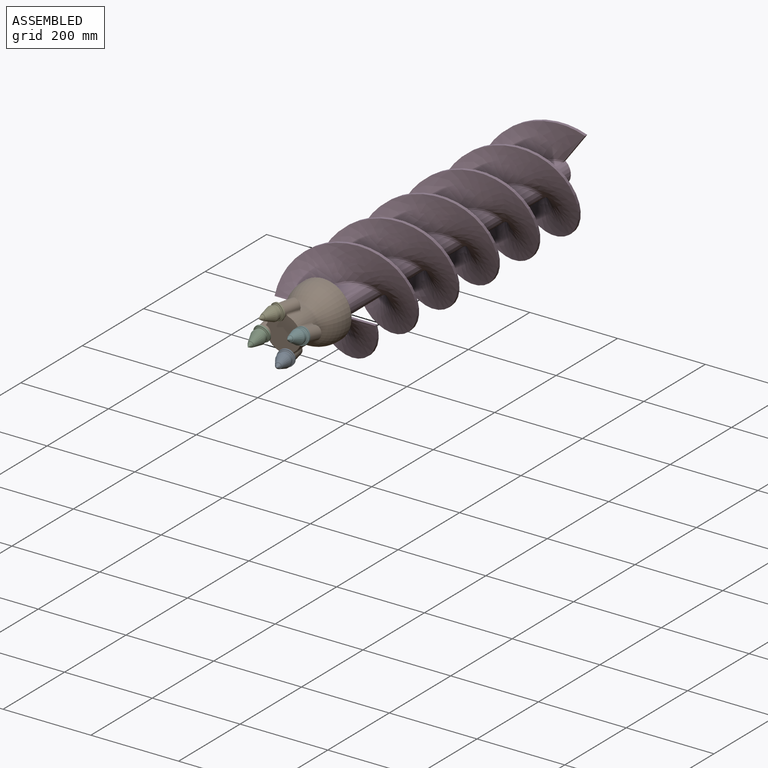
[diagram: assembled view]
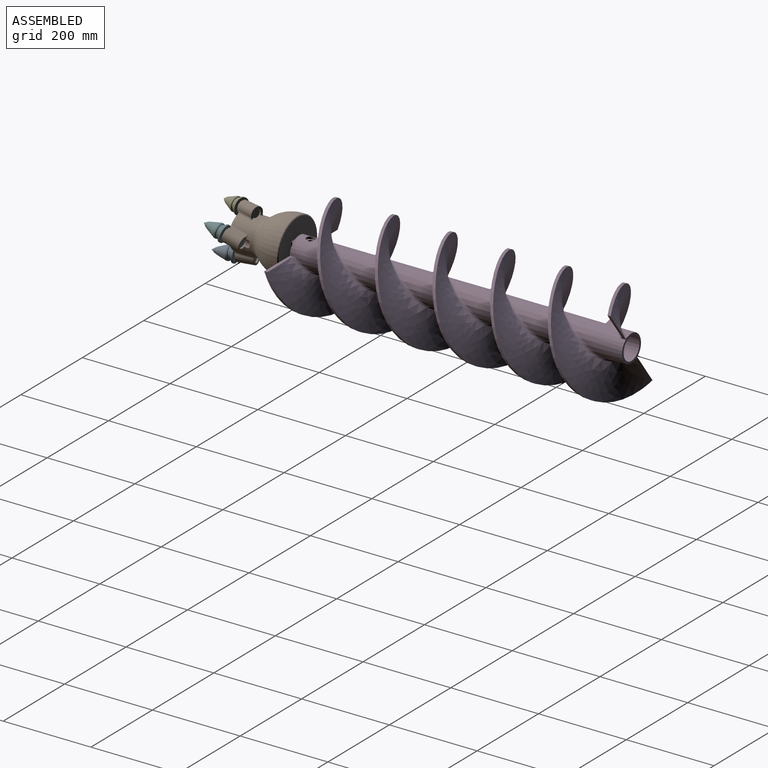
[diagram: assembled view, second angle]
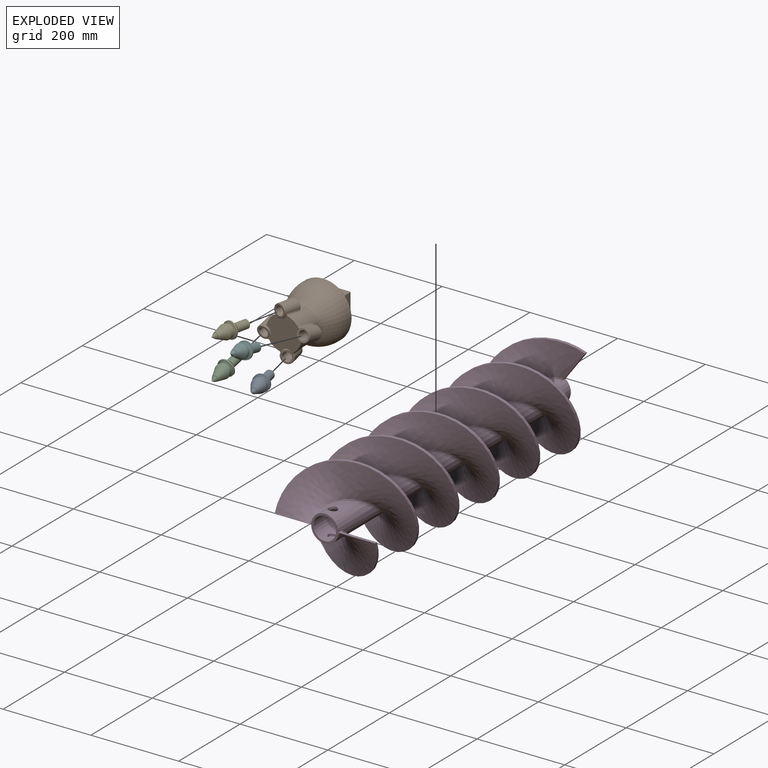
[diagram: exploded view]
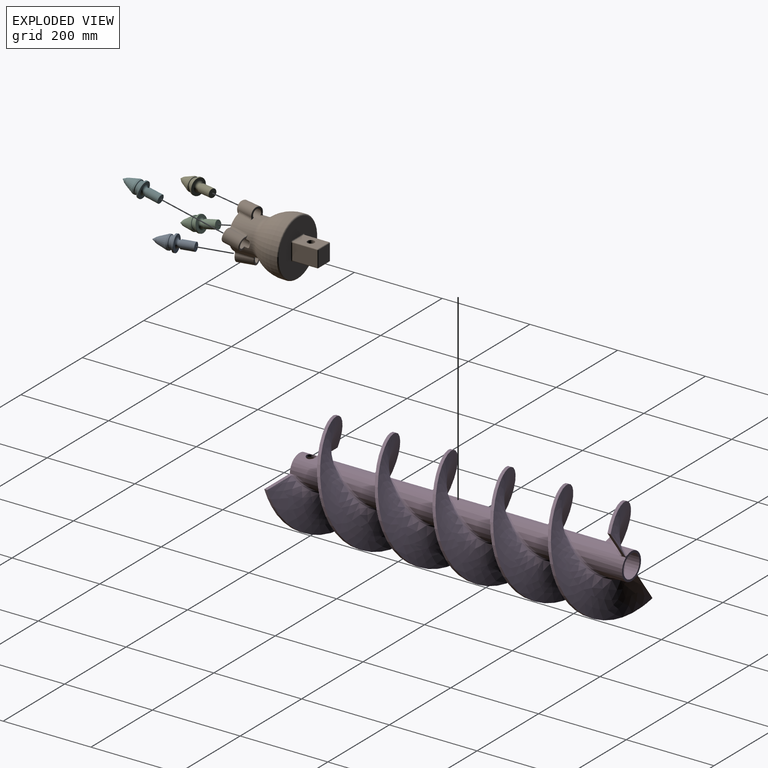
[diagram: exploded view, second angle]
ASSEMBLY  parts=6 mates=5
PART A: 30 faces, bbox 40.4x88.7x40.4 mm
  f0: revolved ~0.46x0.46mm, area 0.2mm2, adj f16
  f1: plane 18.7x18.7mm, normal (0,-1,0), area 274.8mm2, adj f24
  f2: cylinder r=9.65mm len=29.4mm, axis (0,1,0), area 1783mm2, adj f24,f26
  f3: plane 18.7x18.7mm, normal (0,1,0), area 83.6mm2, adj f25,f26
  f4: cylinder r=7.5mm len=15mm, axis (0,1,0), area 167.9mm2, adj f5,f25
  f5: torus R=12.5mm, axis (0,1,0), area 459.8mm2, adj f4,f6
  f6: plane 36.74x36.74mm, normal (0,-1,0), area 569.2mm2, adj f5,f27
  f7: cylinder r=18.67mm len=37.34mm, axis (0,1,0), area 398.8mm2, adj f27,f28
  f8: plane 36.74x36.74mm, normal (0,1,0), area 119.8mm2, adj f19,f28
  f9: plane 31.41x31.41mm, normal (0,1,0), area 39.3mm2, adj f17,f29
  f10: cylinder r=14mm len=28mm, axis (0,1,0), area 387mm2, adj f17,f18
  f11: plane 31.4x31.4mm, normal (0,-1,0), area 39mm2, adj f18,f23
  f12: cylinder r=16mm len=32mm, axis (0,1,0), area 366.3mm2, adj f22,f23
  f13: cone r=7mm half-angle=21.4deg, axis (0,-1,0), area 1756.1mm2, adj f21,f22
  f14: plane 12.98x12.98mm, normal (0,1,0), area 19.1mm2, adj f15,f21
  f15: cylinder r=6mm len=12mm, axis (0,1,0), area 65.4mm2, adj f14,f20
  f16: cone r=0.23mm half-angle=35deg, axis (0,-1,0), area 188.1mm2, adj f0,f20
  f17: torus R=15.3mm, axis (0,1,0), area 185.7mm2, adj f9,f10
  f18: torus R=15.3mm, axis (0,-1,0), area 185.7mm2, adj f10,f11
  f19: torus R=17.3mm, axis (0,1,0), area 203.2mm2, adj f8,f29
  f20: torus R=5.25mm, axis (0,-1,0), area 17.1mm2, adj f15,f16
  f21: torus R=6.49mm, axis (0,1,0), area 38.9mm2, adj f13,f14
  f22: torus R=15.7mm, axis (0,-1,0), area 11.2mm2, adj f12,f13
  f23: torus R=15.7mm, axis (0,-1,0), area 47.1mm2, adj f11,f12
  f24: torus R=9.35mm, axis (0,-1,0), area 28.3mm2, adj f1,f2
  f25: torus R=7.8mm, axis (0,1,0), area 22.5mm2, adj f3,f4
  f26: torus R=9.35mm, axis (0,1,0), area 28.3mm2, adj f2,f3
  f27: torus R=18.37mm, axis (0,-1,0), area 55mm2, adj f6,f7
  f28: torus R=18.37mm, axis (0,1,0), area 55mm2, adj f7,f8
  f29: torus R=15.7mm, axis (0,-1,0), area 45.2mm2, adj f9,f19
PART B: 152 faces, bbox 141.1x195.3x141.1 mm
  f0: bspline ~13.34x7.9mm, area 20mm2, adj f1,f2,f3,f4
  f1: plane 80.81x80.81mm, normal (0,-1,0), area 4165.2mm2, adj f0,f2,f4,f5,f6,f7,f8,f9
  f2: bspline ~9.84x4.05mm, area 10mm2, adj f0,f1,f11,f23
  f3: cylinder r=15mm len=43.59mm, axis (0,-0.98,0.22), area 2095.3mm2, adj f0,f4,f23,f24,f25,f26,f27
  f4: bspline ~4.55x2.81mm, area 5.7mm2, adj f0,f1,f3,f24
  f5: bspline ~7.24x6.26mm, area 8.4mm2, adj f1,f22,f28,f29
  f6: bspline ~16.12x13.29mm, area 25.8mm2, adj f1,f7,f28,f30
  f7: bspline ~9.84x4.07mm, area 10mm2, adj f1,f6,f8,f31
  f8: cylinder r=1mm len=2.76mm, axis (0,0,-1), area 0.6mm2, adj f1,f7,f32,f33
  f9: torus R=39mm, axis (0,-1,0), area 50.4mm2, adj f1,f10,f33,f34,f35
  f10: bspline ~7.24x6.26mm, area 8.4mm2, adj f1,f9,f24,f25
  f11: cylinder r=1mm len=2.76mm, axis (1,0,0), area 0.6mm2, adj f1,f2,f36,f37
  f12: torus R=39mm, axis (0,-1,0), area 50.4mm2, adj f1,f13,f35,f37,f38
  f13: bspline ~7.24x6.26mm, area 8.4mm2, adj f1,f12,f39,f40
  f14: bspline ~16.12x13.29mm, area 25.8mm2, adj f1,f15,f39,f41
  f15: bspline ~9.84x4.07mm, area 10mm2, adj f1,f14,f16,f42
  f16: cylinder r=1mm len=2.76mm, axis (0,0,1), area 0.6mm2, adj f1,f15,f43,f44
  f17: torus R=39mm, axis (0,-1,0), area 50.4mm2, adj f1,f18,f35,f44,f45
  f18: bspline ~7.24x6.26mm, area 8.4mm2, adj f1,f17,f46,f47
  f19: bspline ~16.12x13.29mm, area 25.8mm2, adj f1,f20,f46,f48
  f20: bspline ~9.84x4.07mm, area 10mm2, adj f1,f19,f21,f49
  f21: cylinder r=1mm len=2.76mm, axis (-1,0,0), area 0.6mm2, adj f1,f20,f50,f51
  f22: torus R=39mm, axis (0,-1,0), area 50.4mm2, adj f1,f5,f35,f51,f52
  f23: torus R=14mm, axis (0,-0.98,0.22), area 122.9mm2, adj f2,f3,f36,f53
  f24: bspline ~3.65x1.78mm, area 2.9mm2, adj f3,f4,f10
  f25: bspline ~41.29x11.14mm, area 224.4mm2, adj f3,f10,f35,f54
  f26: torus R=14mm, axis (0,-0.98,0.22), area 82mm2, adj f3,f54,f55,f56
  f27: bspline ~47.31x10.47mm, area 261.4mm2, adj f3,f35,f53,f55
  f28: bspline ~3.65x1.78mm, area 2.9mm2, adj f5,f6,f30
  f29: bspline ~41.29x11.14mm, area 224.4mm2, adj f5,f30,f35,f57
  f30: cylinder r=15mm len=43.59mm, axis (0.22,-0.98,0), area 2092.9mm2, adj f6,f28,f29,f31,f58,f59
  f31: torus R=14mm, axis (0.22,-0.98,0), area 123.2mm2, adj f7,f30,f32,f60
  f32: plane 28.01x27.35mm, normal (0.22,-0.98,0), area 231.5mm2, adj f8,f31,f33,f60,f61
  f33: bspline ~5.7x2.26mm, area 3.6mm2, adj f8,f9,f32,f34
  f34: bspline ~1.76x1.72mm, area 1.5mm2, adj f9,f33,f60,f62
  f35: cylinder r=40mm len=80mm, axis (0,1,0), area 6988mm2, adj f9,f12,f17,f22,f25,f27,f29,f40
  f36: plane 28.01x27.35mm, normal (0,-0.98,0.22), area 231.5mm2, adj f11,f23,f37,f53,f107
  f37: bspline ~5.7x2.26mm, area 3.6mm2, adj f11,f12,f36,f38
  f38: bspline ~1.76x1.72mm, area 1.5mm2, adj f12,f37,f53,f73
  f39: bspline ~3.65x1.78mm, area 2.9mm2, adj f13,f14,f41
  f40: bspline ~41.29x11.14mm, area 224.4mm2, adj f13,f35,f41,f71
  f41: cylinder r=15mm len=43.59mm, axis (-0.22,-0.98,0), area 2092.9mm2, adj f14,f39,f40,f42,f103,f108
  f42: torus R=14mm, axis (-0.22,-0.98,0), area 122.9mm2, adj f15,f41,f43,f109
  f43: plane 28.01x27.35mm, normal (-0.22,-0.98,0), area 231.5mm2, adj f16,f42,f44,f109,f110
  f44: bspline ~5.7x2.26mm, area 3.6mm2, adj f16,f17,f43,f45
  f45: bspline ~1.76x1.72mm, area 1.5mm2, adj f17,f44,f102,f109
  f46: bspline ~3.65x1.78mm, area 2.9mm2, adj f18,f19,f48
  f47: bspline ~41.29x11.14mm, area 224.4mm2, adj f18,f35,f48,f100
  f48: cylinder r=15mm len=43.59mm, axis (0,-0.98,-0.22), area 2092.9mm2, adj f19,f46,f47,f49,f91,f111
  f49: torus R=14mm, axis (0,-0.98,-0.22), area 123.2mm2, adj f20,f48,f50,f112
  f50: plane 28.01x27.35mm, normal (0,-0.98,-0.22), area 231.5mm2, adj f21,f49,f51,f112,f113
  f51: bspline ~5.7x2.26mm, area 3.6mm2, adj f21,f22,f50,f52
  f52: bspline ~1.76x1.72mm, area 1.5mm2, adj f22,f51,f90,f112
  f53: bspline ~7.73x2.93mm, area 7.9mm2, adj f23,f27,f36,f38,f72,f73
  f54: bspline ~6.87x3.71mm, area 9mm2, adj f25,f26,f35,f56
  f55: bspline ~6.89x4.05mm, area 9.7mm2, adj f26,f27,f35,f56
  f56: plane 28.47x21.68mm, normal (0,0.98,-0.22), area 164.4mm2, adj f26,f35,f54,f55,f74
  f57: bspline ~6.87x3.71mm, area 9mm2, adj f29,f35,f58,f82
  f58: torus R=14mm, axis (0.22,-0.98,0), area 82mm2, adj f30,f57,f81,f82
  f59: bspline ~47.31x10.47mm, area 261.4mm2, adj f30,f35,f60,f81
  f60: bspline ~7.73x2.93mm, area 7.9mm2, adj f31,f32,f34,f59,f62,f80
  f61: torus R=11mm, axis (0.22,-0.98,0), area 102.3mm2, adj f32,f114
  f62: bspline ~1.92x1.75mm, area 0.6mm2, adj f34,f35,f60
  f63: torus R=58.08mm, axis (0,1,0), area 3355.5mm2, adj f35,f115
  f64: bspline ~1.6x1.23mm, area 2mm2, adj f35,f65,f106,f116
  f65: bspline ~2.5x1.46mm, area 3.6mm2, adj f35,f64,f66,f116
  f66: bspline ~2.84x1.59mm, area 3.5mm2, adj f35,f65,f67,f116
  f67: bspline ~7.15x5.91mm, area 9.4mm2, adj f35,f66,f68,f116
  f68: bspline ~8.53x2.57mm, area 7.3mm2, adj f35,f67,f69,f117
  f69: torus R=11mm, axis (-0.22,-0.98,0), area 71.2mm2, adj f35,f68,f70,f105,f117
  f70: plane 28.47x21.68mm, normal (0.22,0.98,0), area 164.4mm2, adj f35,f69,f71,f104,f108
  f71: bspline ~6.87x3.71mm, area 9mm2, adj f35,f40,f70,f108
  f72: bspline ~1.28x1.12mm, area 0mm2, adj f35,f53
  f73: bspline ~1.92x1.75mm, area 0.6mm2, adj f35,f38,f53
  f74: torus R=11mm, axis (0,-0.98,0.22), area 71.2mm2, adj f35,f56,f75,f79,f118
  f75: bspline ~8.47x2.58mm, area 7.2mm2, adj f35,f74,f76,f118
  f76: bspline ~7.52x4.23mm, area 9mm2, adj f35,f75,f77,f119
  f77: bspline ~7.28x2.5mm, area 9.1mm2, adj f35,f76,f78,f119
  f78: bspline ~7.15x5.91mm, area 9.4mm2, adj f35,f77,f79,f119
  f79: bspline ~8.53x2.57mm, area 7.3mm2, adj f35,f74,f78,f118
  f80: bspline ~1.28x1.12mm, area 0mm2, adj f35,f60
  f81: bspline ~6.89x4.05mm, area 9.7mm2, adj f35,f58,f59,f82
  f82: plane 28.47x21.68mm, normal (-0.22,0.98,0), area 164.4mm2, adj f35,f57,f58,f81,f83
  f83: torus R=11mm, axis (0.22,-0.98,0), area 71.4mm2, adj f35,f82,f84,f88,f114
  f84: bspline ~8.52x2.59mm, area 7.2mm2, adj f35,f83,f85,f114
  f85: bspline ~7.53x4.28mm, area 9mm2, adj f35,f84,f86,f120
  f86: bspline ~7.24x2.49mm, area 9.1mm2, adj f35,f85,f87,f120
  f87: bspline ~7.15x5.91mm, area 9.4mm2, adj f35,f86,f88,f120
  f88: bspline ~8.53x2.57mm, area 7.2mm2, adj f35,f83,f87,f114
  f89: bspline ~1.28x1.12mm, area 0mm2, adj f35,f112
  f90: bspline ~1.92x1.75mm, area 0.6mm2, adj f35,f52,f112
  f91: bspline ~47.31x10.47mm, area 261.4mm2, adj f35,f48,f92,f112
  f92: bspline ~6.89x4.05mm, area 9.7mm2, adj f35,f91,f93,f111
  f93: plane 28.47x21.68mm, normal (0,0.98,0.22), area 164.4mm2, adj f35,f92,f94,f100,f111
  f94: torus R=11mm, axis (0,-0.98,-0.22), area 71.2mm2, adj f35,f93,f95,f99,f121
  f95: bspline ~8.47x2.58mm, area 7.2mm2, adj f35,f94,f96,f121
  f96: bspline ~7.52x4.23mm, area 9mm2, adj f35,f95,f97,f122
  f97: bspline ~7.28x2.5mm, area 9.1mm2, adj f35,f96,f98,f122
  f98: bspline ~7.15x5.91mm, area 9.4mm2, adj f35,f97,f99,f122
  f99: bspline ~8.53x2.57mm, area 7.3mm2, adj f35,f94,f98,f121
  f100: bspline ~6.87x3.71mm, area 9mm2, adj f35,f47,f93,f111
  f101: bspline ~1.28x1.12mm, area 0mm2, adj f35,f109
  f102: bspline ~1.92x1.75mm, area 0.6mm2, adj f35,f45,f109
  f103: bspline ~47.31x10.47mm, area 261.4mm2, adj f35,f41,f104,f109
  f104: bspline ~6.89x4.05mm, area 9.7mm2, adj f35,f70,f103,f108
  f105: bspline ~8.47x2.58mm, area 7.2mm2, adj f35,f69,f106,f117
  f106: bspline ~7.55x4.58mm, area 9mm2, adj f35,f64,f105,f116
  f107: torus R=11mm, axis (0,-0.98,0.22), area 102.3mm2, adj f36,f118
  f108: torus R=14mm, axis (-0.22,-0.98,0), area 82mm2, adj f41,f70,f71,f104
  f109: bspline ~7.73x2.93mm, area 7.9mm2, adj f42,f43,f45,f101,f102,f103
  f110: torus R=11mm, axis (-0.22,-0.98,0), area 102.3mm2, adj f43,f117
  f111: torus R=14mm, axis (0,-0.98,-0.22), area 82mm2, adj f48,f92,f93,f100
  f112: bspline ~7.73x2.93mm, area 7.9mm2, adj f49,f50,f52,f89,f90,f91
  f113: torus R=11mm, axis (0,-0.98,-0.22), area 102.3mm2, adj f50,f121
  f114: cylinder r=10mm len=48.26mm, axis (0.22,-0.98,0), area 2512.4mm2, adj f61,f83,f84,f88,f120
  f115: revolved ~130x130mm, area 22021.5mm2, adj f63,f123
  f116: torus R=6mm, axis (-0.22,-0.98,0), area 80.4mm2, adj f64,f65,f66,f67,f106,f117
  f117: cylinder r=10mm len=48.26mm, axis (-0.22,-0.98,0), area 2512.4mm2, adj f68,f69,f105,f110,f116
  f118: cylinder r=10mm len=48.26mm, axis (0,-0.98,0.22), area 2512.4mm2, adj f74,f75,f79,f107,f119
  f119: torus R=6mm, axis (0,-0.98,0.22), area 75.5mm2, adj f76,f77,f78,f118
  f120: torus R=6mm, axis (0.22,-0.98,0), area 75.5mm2, adj f85,f86,f87,f114
  f121: cylinder r=10mm len=48.26mm, axis (0,-0.98,-0.22), area 2512.4mm2, adj f94,f95,f99,f113,f122
  f122: torus R=6mm, axis (0,-0.98,-0.22), area 75.5mm2, adj f96,f97,f98,f121
  f123: cylinder r=65mm len=130mm, axis (0,1,0), area 2810.6mm2, adj f115,f124
  f124: torus R=62mm, axis (0,1,0), area 1892.3mm2, adj f123,f125
  f125: plane 124x124mm, normal (0,1,0), area 10154mm2, adj f124,f126,f127,f128,f129,f130,f131,f132
  f126: torus R=4mm, axis (0,1,0), area 13.5mm2, adj f125,f127,f133,f134
  f127: cylinder r=2mm len=36mm, axis (-1,0,0), area 113.1mm2, adj f125,f126,f128,f135
  f128: torus R=4mm, axis (0,1,0), area 13.5mm2, adj f125,f127,f129,f136
  f129: cylinder r=2mm len=36mm, axis (0,0,-1), area 113.1mm2, adj f125,f128,f130,f137
  f130: torus R=4mm, axis (0,1,0), area 13.5mm2, adj f125,f129,f131,f138
  f131: cylinder r=2mm len=36mm, axis (1,0,0), area 113.1mm2, adj f125,f130,f132,f139
  f132: torus R=4mm, axis (0,1,0), area 13.5mm2, adj f125,f131,f133,f140
  f133: cylinder r=2mm len=36mm, axis (0,0,1), area 113.1mm2, adj f125,f126,f132,f141
  f134: cylinder r=2mm len=56mm, axis (0,-1,0), area 175.9mm2, adj f126,f135,f141,f142
  f135: plane 56x36mm, normal (0,0,-1), area 1814.9mm2, adj f127,f134,f136,f143,f144
  f136: cylinder r=2mm len=56mm, axis (0,-1,0), area 175.9mm2, adj f128,f135,f137,f145
  f137: plane 56x36mm, normal (1,0,0), area 2016mm2, adj f129,f136,f138,f146
  f138: cylinder r=2mm len=56mm, axis (0,-1,0), area 175.9mm2, adj f130,f137,f139,f147
  f139: plane 56x36mm, normal (0,0,1), area 1814.9mm2, adj f131,f138,f140,f143,f148
  f140: cylinder r=2mm len=56mm, axis (0,-1,0), area 175.9mm2, adj f132,f139,f141,f149
  f141: plane 56x36mm, normal (-1,0,0), area 2016mm2, adj f133,f134,f140,f150
  f142: sphere r=2mm, area 8.6mm2, adj f134,f144,f150
  f143: cylinder r=8mm len=40mm, axis (0,0,1), area 2010.6mm2, adj f135,f139
  f144: cylinder r=2mm len=36mm, axis (1,0,0), area 113.1mm2, adj f135,f142,f145,f151
  f145: sphere r=2mm, area 4mm2, adj f136,f144,f146
  f146: cylinder r=2mm len=36mm, axis (0,0,1), area 113.1mm2, adj f137,f145,f147,f151
  f147: sphere r=2mm, area 4mm2, adj f138,f146,f148
  f148: cylinder r=2mm len=36mm, axis (-1,0,0), area 113.1mm2, adj f139,f147,f149,f151
  f149: sphere r=2mm, area 8.6mm2, adj f140,f148,f150
  f150: cylinder r=2mm len=36mm, axis (0,0,-1), area 113.1mm2, adj f141,f142,f149,f151
  f151: plane 36x36mm, normal (0,1,0), area 1296mm2, adj f144,f146,f148,f150
PART C: same geometry as A
PART D: 22 faces, bbox 232.9x769.9x233.4 mm
  f0: cylinder r=31mm len=757mm, axis (0,-1,0), area 61045mm2, adj f1,f2,f3,f4,f5,f6,f7
  f1: cylinder r=10mm len=20mm, axis (0,0,1), area 335.7mm2, adj f0,f8
  f2: plane 85.65x16.93mm, normal (0,0,1), area 590.9mm2, adj f0,f3,f9,f10,f11
  f3: bspline ~757.47x71.61mm, area 7045.1mm2, adj f0,f2,f4,f9
  f4: plane 124.24x100.63mm, normal (0,1,0), area 908.4mm2, adj f0,f3,f5,f8,f12,f13,f14,f15
  f5: plane 66.96x49.76mm, normal (-0.8,0,0.6), area 591.2mm2, adj f0,f4,f6,f12,f17
  f6: bspline ~757.63x71.61mm, area 7055.3mm2, adj f0,f5,f7,f17,f18
  f7: plane 72.98x63.39mm, normal (0,-1,0), area 907mm2, adj f0,f6,f8,f11,f15,f18,f19
  f8: cylinder r=26mm len=757mm, axis (0,-1,0), area 123023.8mm2, adj f1,f4,f7,f20
  f9: bspline ~753.14x230.62mm, area 122194.5mm2, adj f2,f3,f10,f16
  f10: cylinder r=114.4mm len=757.01mm, axis (0,-1,0), area 14341.8mm2, adj f2,f9,f11,f16
  f11: bspline ~753.14x230.62mm, area 122194mm2, adj f2,f7,f10,f16,f19
  f12: cylinder r=114.4mm len=757mm, axis (0,1,0), area 14353.8mm2, adj f4,f5,f13,f17,f18
  f13: bspline ~753.14x231.15mm, area 122169.2mm2, adj f4,f12,f14,f18
  f14: bspline ~757.87x71.61mm, area 7044.8mm2, adj f4,f13,f15,f18
  f15: cylinder r=31mm len=757mm, axis (0,-1,0), area 61340.5mm2, adj f4,f7,f14,f16,f18,f19
  f16: plane 69.21x52.01mm, normal (0.8,0,-0.6), area 591.5mm2, adj f4,f9,f10,f11,f15,f19
  f17: bspline ~753.14x231.15mm, area 122165.4mm2, adj f5,f6,f12,f18
  f18: plane 85.66x16.94mm, normal (0,0,-1), area 591.5mm2, adj f6,f7,f12,f13,f14,f15,f17
  f19: bspline ~757.7x71.61mm, area 7045.5mm2, adj f7,f11,f15,f16
  f20: cylinder r=10mm len=20mm, axis (0,0,1), area 314.2mm2, adj f8,f21
  f21: cylinder r=31mm len=20mm, axis (0,-1,0), area 318.4mm2, adj f20
PART E: same geometry as A
PART F: same geometry as A
PLACE A rot(axis=(-0.99,-0.11,0),180deg) t=(4.02,-172.42,24.15)mm
PLACE B t=(-6.38,-98.04,69.15)mm fixed
PLACE C rot(axis=(-1,0,0),167.5deg) t=(-51.38,-172.42,58.76)mm
PLACE D t=(-6.38,101.96,65.21)mm
PLACE E rot(axis=(0.96,-0.11,0.25),176.9deg) t=(-16.77,-172.42,114.15)mm
PLACE F rot(axis=(1,0,0),167.5deg) t=(38.62,-172.42,79.55)mm
MATE revolute C.f2 <-> B.f48  axis (0,-0.98,-0.22) through (-51.38,-129.44,68.29)mm
MATE revolute A.f2 <-> B.f30  axis (0.22,-0.98,0) through (-5.51,-129.44,24.15)mm
MATE revolute E.f2 <-> B.f41  axis (-0.22,-0.98,0) through (-7.24,-129.44,114.15)mm
MATE fastened F.f2 <-> B.f3  axis (0,-0.98,0.22) through (38.62,-129.44,70.02)mm
MATE revolute B.f143 <-> D.f1  axis (0,0,1) through (-6.38,-3.04,89.15)mm
